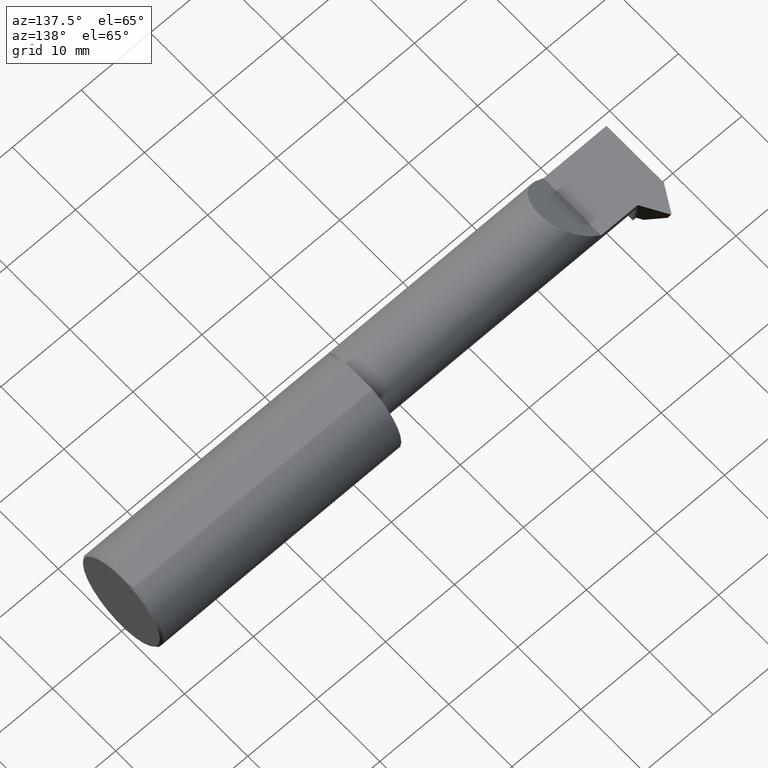
[diagram: clean part render]
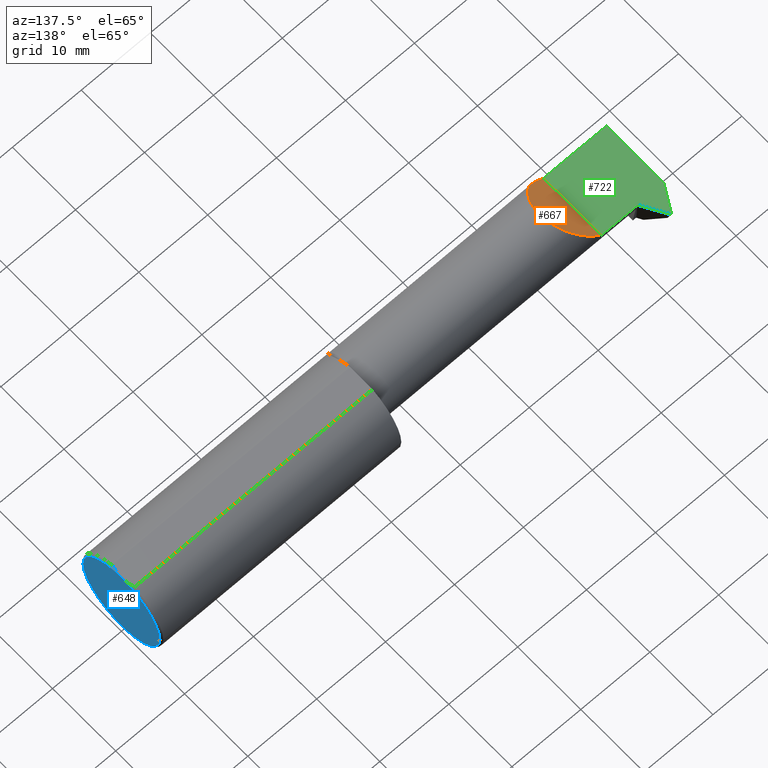
[diagram: same view with three faces highlighted in distinct colors, each labeled with its STEP entity id]
A machine part, auxiliary view with three faces highlighted in distinct colors.
Their STEP definitions:

[orange] entity #667 — the highlighted planar face has unit normal (0.7071, 0, -0.7071).
#9 = DIRECTION ( 'NONE',  ( -0.000000000000000000, 1.000000000000000000, -0.000000000000000000 ) ) ;
#26 = EDGE_LOOP ( 'NONE', ( #437, #624, #362 ) ) ;
#97 = PLANE ( 'NONE',  #217 ) ;
#101 = DIRECTION ( 'NONE',  ( -0.7071067811865514585, 0.000000000000000000, -0.7071067811865435759 ) ) ;
#124 =( BOUNDED_CURVE ( )  B_SPLINE_CURVE ( 3, ( #470, #475, #528, #289 ),
 .UNSPECIFIED., .F., .F. ) 
 B_SPLINE_CURVE_WITH_KNOTS ( ( 4, 4 ),
 ( 4.712388980384689674, 5.154735109466821896 ),
 .UNSPECIFIED. ) 
 CURVE ( )  GEOMETRIC_REPRESENTATION_ITEM ( )  RATIONAL_B_SPLINE_CURVE ( ( 1.000000000000000000, 0.9837605203333756876, 0.9837605203333756876, 1.000000000000000000 ) ) 
 REPRESENTATION_ITEM ( '' )  );
#154 = CARTESIAN_POINT ( 'NONE',  ( -2.640000000000000124, -0.2500000000000000000, 0.000000000000000000 ) ) ;
#203 =( BOUNDED_CURVE ( )  B_SPLINE_CURVE ( 3, ( #760, #704, #395, #340 ),
 .UNSPECIFIED., .F., .F. ) 
 B_SPLINE_CURVE_WITH_KNOTS ( ( 4, 4 ),
 ( 1.570796326794896558, 4.095973986638924202 ),
 .UNSPECIFIED. ) 
 CURVE ( )  GEOMETRIC_REPRESENTATION_ITEM ( )  RATIONAL_B_SPLINE_CURVE ( ( 1.000000000000000000, 0.5355673909124378795, 0.5355673909124378795, 1.000000000000000000 ) ) 
 REPRESENTATION_ITEM ( '' )  );
#217 = AXIS2_PLACEMENT_3D ( 'NONE', #154, #333, #101 ) ;
#226 = VERTEX_POINT ( 'NONE', #459 ) ;
#240 = VERTEX_POINT ( 'NONE', #697 ) ;
#254 = LINE ( 'NONE', #552, #423 ) ;
#288 = FACE_OUTER_BOUND ( 'NONE', #26, .T. ) ;
#289 = CARTESIAN_POINT ( 'NONE',  ( -2.533048970379630394, -0.2258019038076140295, 0.1069510296203686622 ) ) ;
#333 = DIRECTION ( 'NONE',  ( 0.7071067811865435759, 0.000000000000000000, -0.7071067811865514585 ) ) ;
#340 = CARTESIAN_POINT ( 'NONE',  ( -2.533048970379630394, -0.2258019038076140295, 0.1069510296203686622 ) ) ;
#362 = ORIENTED_EDGE ( 'NONE', *, *, #398, .T. ) ;
#395 = CARTESIAN_POINT ( 'NONE',  ( -2.354000382304568539, -0.09894407450122372216, 0.2859996176954284763 ) ) ;
#398 = EDGE_CURVE ( 'NONE', #226, #240, #124, .T. ) ;
#423 = VECTOR ( 'NONE', #9, 39.37007874015748143 ) ;
#437 = ORIENTED_EDGE ( 'NONE', *, *, #692, .F. ) ;
#459 = CARTESIAN_POINT ( 'NONE',  ( -2.640000000000000124, -0.2498499999999999610, 0.000000000000000000 ) ) ;
#470 = CARTESIAN_POINT ( 'NONE',  ( -2.640000000000000124, -0.2498499999999999610, 0.000000000000000000 ) ) ;
#475 = CARTESIAN_POINT ( 'NONE',  ( -2.602856366925426101, -0.2498499999999998500, 0.03714363307457358571 ) ) ;
#477 = VERTEX_POINT ( 'NONE', #497 ) ;
#497 = CARTESIAN_POINT ( 'NONE',  ( -2.640000000000000124, 0.1101500000000001228, 0.000000000000000000 ) ) ;
#528 = CARTESIAN_POINT ( 'NONE',  ( -2.566617523761940411, -0.2417016428557101360, 0.07338247623805857489 ) ) ;
#534 = EDGE_CURVE ( 'NONE', #226, #477, #254, .T. ) ;
#552 = CARTESIAN_POINT ( 'NONE',  ( -2.640000000000000124, -0.2500000000000000000, 0.000000000000000000 ) ) ;
#624 = ORIENTED_EDGE ( 'NONE', *, *, #534, .F. ) ;
#667 = ADVANCED_FACE ( 'NONE', ( #288 ), #97, .F. ) ;
#692 = EDGE_CURVE ( 'NONE', #477, #240, #203, .T. ) ;
#697 = CARTESIAN_POINT ( 'NONE',  ( -2.533048970379630394, -0.2258019038076140295, 0.1069510296203686622 ) ) ;
#704 = CARTESIAN_POINT ( 'NONE',  ( -2.420565942142058002, 0.1101500000000000673, 0.2194340578579397627 ) ) ;
#760 = CARTESIAN_POINT ( 'NONE',  ( -2.640000000000000124, 0.1101500000000001228, 0.000000000000000000 ) ) ;

[blue] entity #648 — the highlighted planar face has unit normal (1, 0, -0).
#7 = ORIENTED_EDGE ( 'NONE', *, *, #148, .T. ) ;
#66 = CIRCLE ( 'NONE', #210, 0.2398500000000004240 ) ;
#80 = AXIS2_PLACEMENT_3D ( 'NONE', #277, #520, #324 ) ;
#83 = CARTESIAN_POINT ( 'NONE',  ( 4.467205361589754149E-17, -0.2398499999999999799, 0.000000000000000000 ) ) ;
#148 = EDGE_CURVE ( 'NONE', #694, #715, #66, .T. ) ;
#163 = PLANE ( 'NONE',  #734 ) ;
#168 = CARTESIAN_POINT ( 'NONE',  ( -6.745148754278355005E-33, 3.731796911060679279E-16, 0.2398500000000000631 ) ) ;
#205 = CARTESIAN_POINT ( 'NONE',  ( 1.529890013834825727E-17, 4.286263797015730678E-16, 0.000000000000000000 ) ) ;
#210 = AXIS2_PLACEMENT_3D ( 'NONE', #205, #439, #558 ) ;
#216 = CARTESIAN_POINT ( 'NONE',  ( 1.529890013834831273E-17, 1.873574908490323227E-33, 0.000000000000000000 ) ) ;
#218 = DIRECTION ( 'NONE',  ( -1.224646799147351482E-16, 1.000000000000000000, 0.000000000000000000 ) ) ;
#253 = EDGE_CURVE ( 'NONE', #335, #694, #512, .T. ) ;
#277 = CARTESIAN_POINT ( 'NONE',  ( 1.529890013834825727E-17, 4.286263797015730678E-16, 0.000000000000000000 ) ) ;
#279 = CARTESIAN_POINT ( 'NONE',  ( -1.407425333920101771E-17, 0.2398500000000008681, 2.998547687712296871E-17 ) ) ;
#324 = DIRECTION ( 'NONE',  ( -1.224646799147351482E-16, 1.000000000000000000, 0.000000000000000000 ) ) ;
#325 = EDGE_LOOP ( 'NONE', ( #689, #460, #7 ) ) ;
#330 = EDGE_CURVE ( 'NONE', #715, #335, #344, .T. ) ;
#335 = VERTEX_POINT ( 'NONE', #83 ) ;
#338 = CARTESIAN_POINT ( 'NONE',  ( 1.529890013834825727E-17, 4.286263797015730678E-16, 0.000000000000000000 ) ) ;
#344 = CIRCLE ( 'NONE', #80, 0.2398500000000004240 ) ;
#400 = DIRECTION ( 'NONE',  ( -1.224646799147351482E-16, 1.000000000000000000, 0.000000000000000000 ) ) ;
#439 = DIRECTION ( 'NONE',  ( 1.000000000000000000, 1.224646799147351482E-16, -0.000000000000000000 ) ) ;
#460 = ORIENTED_EDGE ( 'NONE', *, *, #253, .T. ) ;
#512 = CIRCLE ( 'NONE', #708, 0.2398500000000004240 ) ;
#520 = DIRECTION ( 'NONE',  ( 1.000000000000000000, 1.224646799147351482E-16, -0.000000000000000000 ) ) ;
#530 = FACE_OUTER_BOUND ( 'NONE', #325, .T. ) ;
#558 = DIRECTION ( 'NONE',  ( -1.224646799147351482E-16, 1.000000000000000000, 0.000000000000000000 ) ) ;
#636 = DIRECTION ( 'NONE',  ( 1.000000000000000000, 1.224646799147351482E-16, -0.000000000000000000 ) ) ;
#648 = ADVANCED_FACE ( 'NONE', ( #530 ), #163, .T. ) ;
#689 = ORIENTED_EDGE ( 'NONE', *, *, #330, .T. ) ;
#690 = DIRECTION ( 'NONE',  ( 1.000000000000000000, 1.224646799147351482E-16, -0.000000000000000000 ) ) ;
#694 = VERTEX_POINT ( 'NONE', #279 ) ;
#708 = AXIS2_PLACEMENT_3D ( 'NONE', #338, #636, #218 ) ;
#715 = VERTEX_POINT ( 'NONE', #168 ) ;
#734 = AXIS2_PLACEMENT_3D ( 'NONE', #216, #690, #400 ) ;

[green] entity #722 — the highlighted planar face has unit normal (0, 0, -1).
#9 = DIRECTION ( 'NONE',  ( -0.000000000000000000, 1.000000000000000000, -0.000000000000000000 ) ) ;
#13 = AXIS2_PLACEMENT_3D ( 'NONE', #346, #571, #582 ) ;
#16 = VERTEX_POINT ( 'NONE', #410 ) ;
#27 = CARTESIAN_POINT ( 'NONE',  ( -2.847599165543727828, 0.1101499999999999146, 0.000000000000000000 ) ) ;
#49 = EDGE_CURVE ( 'NONE', #640, #16, #673, .T. ) ;
#69 = DIRECTION ( 'NONE',  ( 1.000000000000000000, -9.422009876951564852E-18, 0.000000000000000000 ) ) ;
#72 = LINE ( 'NONE', #611, #92 ) ;
#76 = CARTESIAN_POINT ( 'NONE',  ( -3.000000000000000444, 0.1101500000000000812, 0.000000000000000000 ) ) ;
#79 = VECTOR ( 'NONE', #69, 39.37007874015748143 ) ;
#84 = ORIENTED_EDGE ( 'NONE', *, *, #427, .T. ) ;
#86 = EDGE_CURVE ( 'NONE', #16, #150, #72, .T. ) ;
#87 = EDGE_CURVE ( 'NONE', #215, #477, #661, .T. ) ;
#92 = VECTOR ( 'NONE', #620, 39.37007874015748143 ) ;
#94 = FACE_OUTER_BOUND ( 'NONE', #768, .T. ) ;
#106 = PLANE ( 'NONE',  #13 ) ;
#107 = CARTESIAN_POINT ( 'NONE',  ( -2.088003025044360861, -1.205509108578122657, 0.000000000000000000 ) ) ;
#117 = DIRECTION ( 'NONE',  ( 0.5000000000000024425, -0.8660254037844371533, 0.000000000000000000 ) ) ;
#118 = ORIENTED_EDGE ( 'NONE', *, *, #341, .T. ) ;
#132 = CARTESIAN_POINT ( 'NONE',  ( -2.921500000000000874, 0.2381500000000000283, 0.000000000000000000 ) ) ;
#138 = CARTESIAN_POINT ( 'NONE',  ( -1.128423961883223559E-15, 0.1101500000000290302, 0.000000000000000000 ) ) ;
#150 = VERTEX_POINT ( 'NONE', #132 ) ;
#162 = EDGE_CURVE ( 'NONE', #266, #215, #426, .T. ) ;
#178 = DIRECTION ( 'NONE',  ( 1.224646799147351482E-16, -1.000000000000000000, 0.000000000000000000 ) ) ;
#196 = ORIENTED_EDGE ( 'NONE', *, *, #162, .F. ) ;
#207 = CARTESIAN_POINT ( 'NONE',  ( -2.842599165543727935, 0.1101499999999998453, 0.000000000000000000 ) ) ;
#211 = LINE ( 'NONE', #684, #359 ) ;
#215 = VERTEX_POINT ( 'NONE', #207 ) ;
#219 = ORIENTED_EDGE ( 'NONE', *, *, #86, .F. ) ;
#226 = VERTEX_POINT ( 'NONE', #459 ) ;
#241 = CARTESIAN_POINT ( 'NONE',  ( -3.000000000000000444, -0.2498499999999999610, 0.000000000000000000 ) ) ;
#254 = LINE ( 'NONE', #552, #423 ) ;
#261 = DIRECTION ( 'NONE',  ( 1.000000000000000000, 1.024442997624081894E-14, 0.000000000000000000 ) ) ;
#266 = VERTEX_POINT ( 'NONE', #27 ) ;
#314 = DIRECTION ( 'NONE',  ( 0.4999999999999885647, 0.8660254037844451469, 0.000000000000000000 ) ) ;
#341 = EDGE_CURVE ( 'NONE', #576, #226, #211, .T. ) ;
#346 = CARTESIAN_POINT ( 'NONE',  ( -3.000000000000000444, -0.2500000000000000000, 0.000000000000000000 ) ) ;
#347 = EDGE_CURVE ( 'NONE', #150, #266, #538, .T. ) ;
#359 = VECTOR ( 'NONE', #625, 39.37007874015748143 ) ;
#384 = VECTOR ( 'NONE', #178, 39.37007874015748143 ) ;
#402 = ORIENTED_EDGE ( 'NONE', *, *, #347, .F. ) ;
#410 = CARTESIAN_POINT ( 'NONE',  ( -2.924500000000000544, 0.2381500000000000283, 0.000000000000000000 ) ) ;
#423 = VECTOR ( 'NONE', #9, 39.37007874015748143 ) ;
#426 = LINE ( 'NONE', #138, #606 ) ;
#427 = EDGE_CURVE ( 'NONE', #640, #576, #767, .T. ) ;
#459 = CARTESIAN_POINT ( 'NONE',  ( -2.640000000000000124, -0.2498499999999999610, 0.000000000000000000 ) ) ;
#477 = VERTEX_POINT ( 'NONE', #497 ) ;
#497 = CARTESIAN_POINT ( 'NONE',  ( -2.640000000000000124, 0.1101500000000001228, 0.000000000000000000 ) ) ;
#534 = EDGE_CURVE ( 'NONE', #226, #477, #254, .T. ) ;
#538 = LINE ( 'NONE', #107, #560 ) ;
#552 = CARTESIAN_POINT ( 'NONE',  ( -2.640000000000000124, -0.2500000000000000000, 0.000000000000000000 ) ) ;
#560 = VECTOR ( 'NONE', #117, 39.37007874015748854 ) ;
#567 = ORIENTED_EDGE ( 'NONE', *, *, #87, .F. ) ;
#571 = DIRECTION ( 'NONE',  ( 0.000000000000000000, 0.000000000000000000, -1.000000000000000000 ) ) ;
#573 = ORIENTED_EDGE ( 'NONE', *, *, #49, .F. ) ;
#576 = VERTEX_POINT ( 'NONE', #241 ) ;
#582 = DIRECTION ( 'NONE',  ( -1.000000000000000000, 0.000000000000000000, -0.000000000000000000 ) ) ;
#606 = VECTOR ( 'NONE', #261, 39.37007874015748143 ) ;
#611 = CARTESIAN_POINT ( 'NONE',  ( -3.000000000000000444, 0.2381500000000000006, 0.000000000000000000 ) ) ;
#620 = DIRECTION ( 'NONE',  ( 1.000000000000000000, -9.422009876951564852E-18, 0.000000000000000000 ) ) ;
#622 = ORIENTED_EDGE ( 'NONE', *, *, #534, .T. ) ;
#625 = DIRECTION ( 'NONE',  ( 1.000000000000000000, 1.224646799147351482E-16, -0.000000000000000000 ) ) ;
#640 = VERTEX_POINT ( 'NONE', #696 ) ;
#661 = LINE ( 'NONE', #76, #79 ) ;
#673 = LINE ( 'NONE', #677, #764 ) ;
#677 = CARTESIAN_POINT ( 'NONE',  ( -2.296496974955664072, 1.325883146683773717, 0.000000000000000000 ) ) ;
#684 = CARTESIAN_POINT ( 'NONE',  ( -3.000000000000000444, -0.2498499999999999333, 0.000000000000000000 ) ) ;
#696 = CARTESIAN_POINT ( 'NONE',  ( -3.000000000000000444, 0.1073801640285464987, 0.000000000000000000 ) ) ;
#700 = CARTESIAN_POINT ( 'NONE',  ( -3.000000000000000444, 6.123233995736759873E-17, 0.000000000000000000 ) ) ;
#722 = ADVANCED_FACE ( 'NONE', ( #94 ), #106, .F. ) ;
#764 = VECTOR ( 'NONE', #314, 39.37007874015748854 ) ;
#767 = LINE ( 'NONE', #700, #384 ) ;
#768 = EDGE_LOOP ( 'NONE', ( #219, #573, #84, #118, #622, #567, #196, #402 ) ) ;